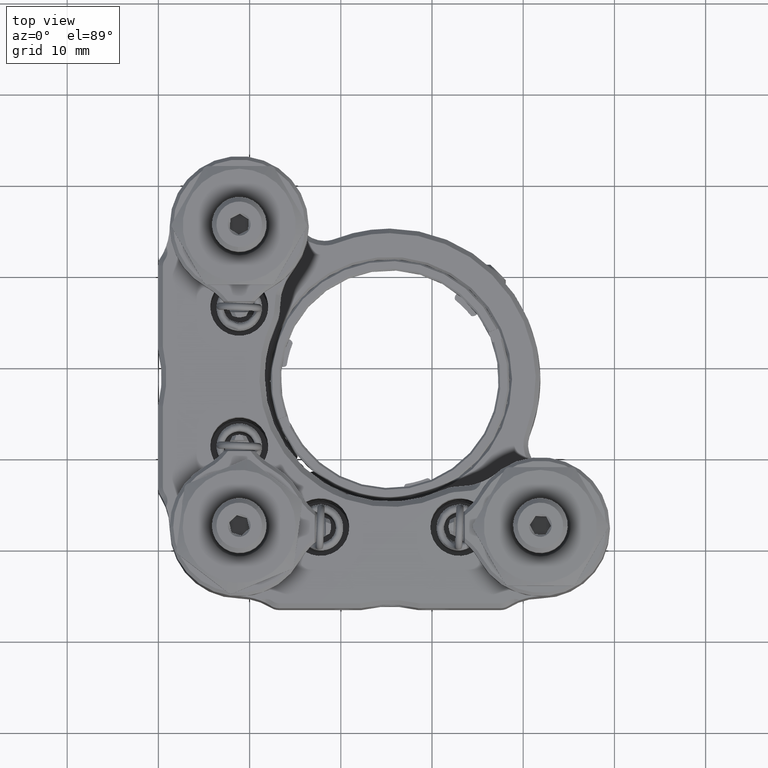
[diagram: clean part render]
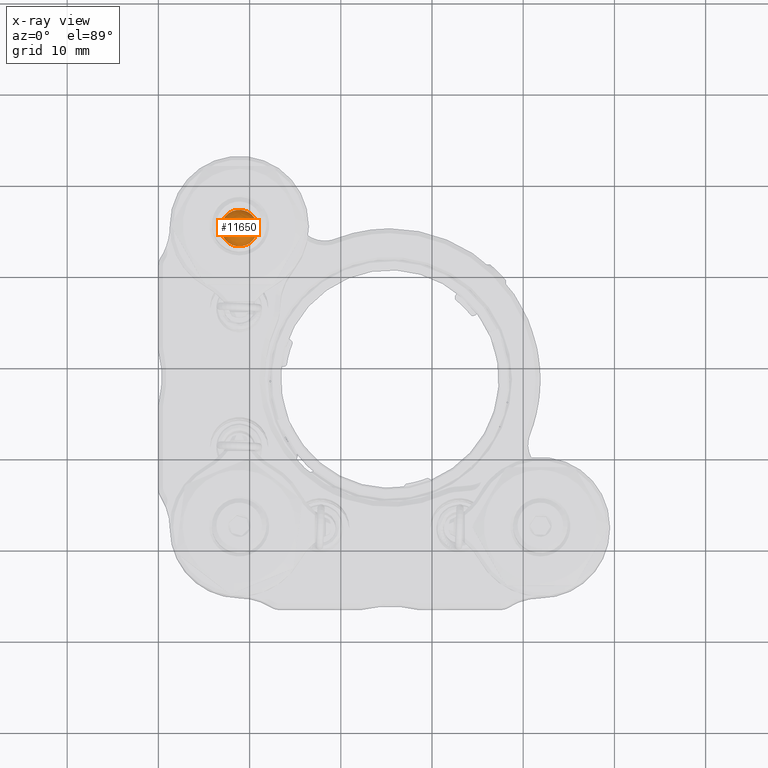
[diagram: x-ray — body ghosted, one internal face saturated and labeled with its STEP entity id]
A machine part, top view, then the same camera in x-ray: the body is ghosted and one INTERNAL B-rep face — a face not visible from any outside direction — is saturated and labeled: STEP entity #11650.
In plain terms, the highlighted spherical surface has radius 2 mm.
Its self-contained STEP definition (entity closure, byte-faithful):
#1003 = DIRECTION ( 'NONE',  ( 0.000000000000000000, 0.000000000000000000, -1.000000000000000000 ) ) ;
#1726 = CIRCLE ( 'NONE', #6084, 2.000000000000000000 ) ;
#1805 = VERTEX_POINT ( 'NONE', #24118 ) ;
#2602 = DIRECTION ( 'NONE',  ( -1.000000000000000000, 0.000000000000000000, -1.224646799147353207E-16 ) ) ;
#6084 = AXIS2_PLACEMENT_3D ( 'NONE', #20303, #16249, #21929 ) ;
#6566 = SPHERICAL_SURFACE ( 'NONE', #20831, 2.000000000000000000 ) ;
#10087 = AXIS2_PLACEMENT_3D ( 'NONE', #12009, #22882, #2602 ) ;
#10517 = DIRECTION ( 'NONE',  ( 1.000000000000000000, 0.000000000000000000, 0.000000000000000000 ) ) ;
#11650 = ADVANCED_FACE ( 'NONE', ( #13734 ), #6566, .T. ) ;
#12009 = CARTESIAN_POINT ( 'NONE',  ( 0.000000000000000000, 0.000000000000000000, 0.000000000000000000 ) ) ;
#13734 = FACE_OUTER_BOUND ( 'NONE', #19858, .T. ) ;
#14105 = CARTESIAN_POINT ( 'NONE',  ( 0.000000000000000000, 0.000000000000000000, 0.000000000000000000 ) ) ;
#15214 = CIRCLE ( 'NONE', #10087, 2.000000000000000000 ) ;
#16249 = DIRECTION ( 'NONE',  ( 0.000000000000000000, 0.000000000000000000, 1.000000000000000000 ) ) ;
#16553 = EDGE_CURVE ( 'NONE', #1805, #19338, #1726, .T. ) ;
#19210 = EDGE_CURVE ( 'NONE', #1805, #19338, #15214, .T. ) ;
#19338 = VERTEX_POINT ( 'NONE', #21754 ) ;
#19858 = EDGE_LOOP ( 'NONE', ( #20492, #24150 ) ) ;
#20303 = CARTESIAN_POINT ( 'NONE',  ( 0.000000000000000000, 0.000000000000000000, 0.000000000000000000 ) ) ;
#20492 = ORIENTED_EDGE ( 'NONE', *, *, #19210, .F. ) ;
#20831 = AXIS2_PLACEMENT_3D ( 'NONE', #14105, #1003, #10517 ) ;
#21754 = CARTESIAN_POINT ( 'NONE',  ( 1.224646799147353207E-16, 2.000000000000000000, 0.000000000000000000 ) ) ;
#21929 = DIRECTION ( 'NONE',  ( 1.000000000000000000, 0.000000000000000000, 0.000000000000000000 ) ) ;
#22882 = DIRECTION ( 'NONE',  ( 1.224646799147353207E-16, 0.000000000000000000, -1.000000000000000000 ) ) ;
#24118 = CARTESIAN_POINT ( 'NONE',  ( 1.224646799147353207E-16, -2.000000000000000000, 0.000000000000000000 ) ) ;
#24150 = ORIENTED_EDGE ( 'NONE', *, *, #16553, .T. ) ;